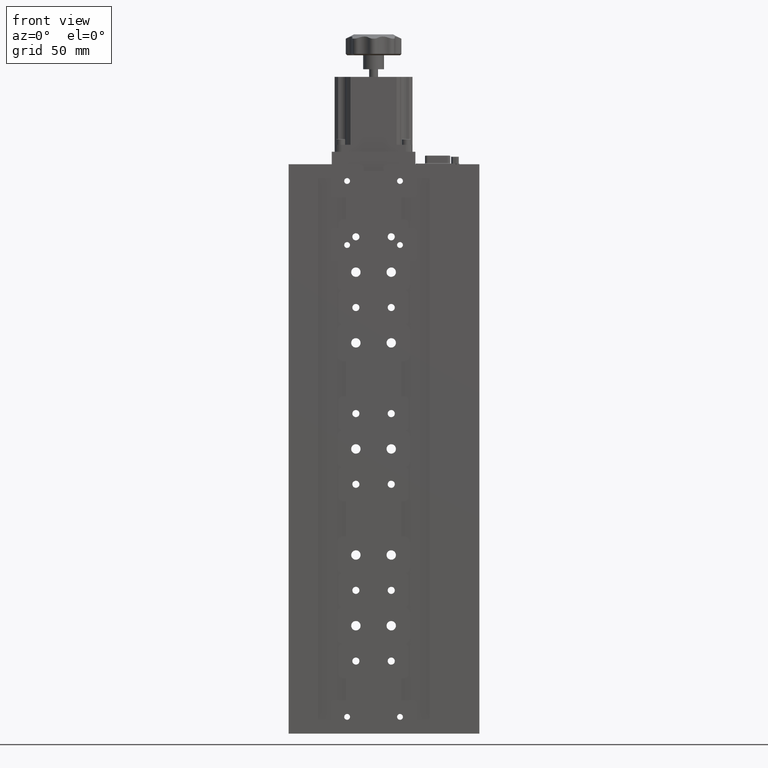
[diagram: clean part render]
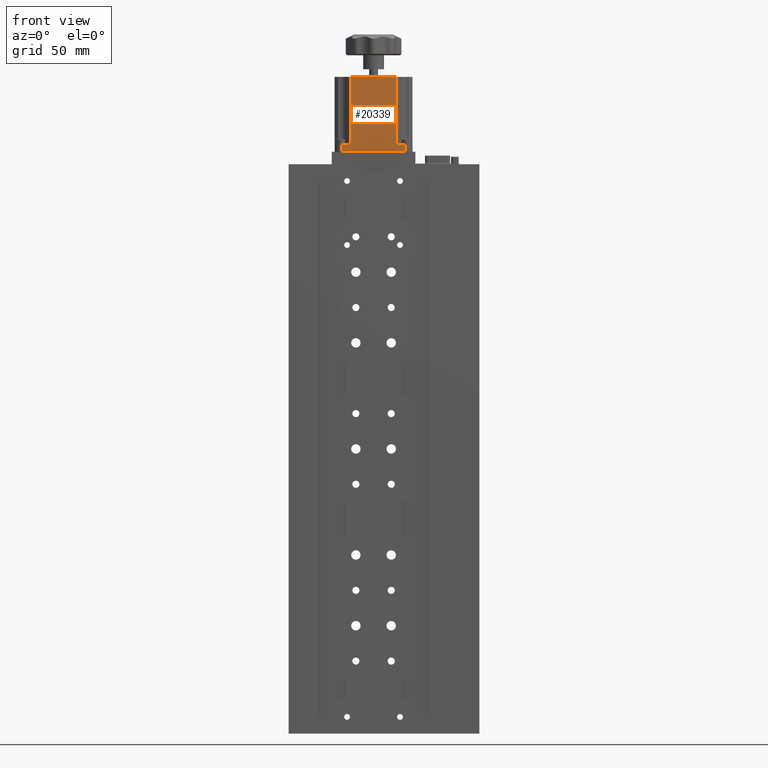
[diagram: same view with one face highlighted and labeled with its STEP entity id]
A machine part, front view. The second image highlights one B-rep face of the part: STEP entity #20339.
In plain terms, the highlighted planar face has unit normal (0, 1, 0).
Its self-contained STEP definition (entity closure, byte-faithful):
#194 = VERTEX_POINT ( 'NONE', #41852 ) ;
#454 = CARTESIAN_POINT ( 'NONE',  ( -33.28011670107466800, -7.104423987207602500, 150.7392992934879300 ) ) ;
#2361 = AXIS2_PLACEMENT_3D ( 'NONE', #10213, #33996, #13643 ) ;
#3140 = DIRECTION ( 'NONE',  ( -1.000000000000000000, 1.288651725011342800E-017, 0.0000000000000000000 ) ) ;
#3542 = CARTESIAN_POINT ( 'NONE',  ( 17.71988329892533200, -7.104423987207602500, 155.7392992934879300 ) ) ;
#3611 = VERTEX_POINT ( 'NONE', #12230 ) ;
#3935 = ORIENTED_EDGE ( 'NONE', *, *, #34190, .T. ) ;
#4671 = LINE ( 'NONE', #29257, #29659 ) ;
#5427 = CARTESIAN_POINT ( 'NONE',  ( -33.28011670107466800, -7.104423987207602500, 155.7392992934879300 ) ) ;
#5600 = ORIENTED_EDGE ( 'NONE', *, *, #9607, .T. ) ;
#6209 = VECTOR ( 'NONE', #33593, 1000.000000000000000 ) ;
#6934 = DIRECTION ( 'NONE',  ( -1.000000000000000000, 1.288651725011345200E-017, 0.0000000000000000000 ) ) ;
#7453 = DIRECTION ( 'NONE',  ( 0.0000000000000000000, -0.0000000000000000000, -1.000000000000000000 ) ) ;
#7734 = VERTEX_POINT ( 'NONE', #5427 ) ;
#8101 = CARTESIAN_POINT ( 'NONE',  ( 12.71988329892533400, -7.104423987207602500, 150.7392992934879300 ) ) ;
#9297 = LINE ( 'NONE', #41987, #18310 ) ;
#9548 = CARTESIAN_POINT ( 'NONE',  ( -26.85011670107465100, -7.104423987207591800, 155.7392992934879300 ) ) ;
#9607 = EDGE_CURVE ( 'NONE', #16421, #194, #25834, .T. ) ;
#9844 = VERTEX_POINT ( 'NONE', #8101 ) ;
#10024 = EDGE_CURVE ( 'NONE', #3611, #33325, #23606, .T. ) ;
#10213 = CARTESIAN_POINT ( 'NONE',  ( 17.71988329892533200, -7.104423987207602500, 150.7392992934879300 ) ) ;
#11770 = VECTOR ( 'NONE', #3140, 1000.000000000000000 ) ;
#12230 = CARTESIAN_POINT ( 'NONE',  ( -26.85011670107463600, -7.104423987207598900, 204.5392992934879400 ) ) ;
#13133 = EDGE_LOOP ( 'NONE', ( #5600, #16105, #17919, #41411, #20709, #14975, #18146, #3935 ) ) ;
#13643 = DIRECTION ( 'NONE',  ( 1.000000000000000000, -1.288651725011345200E-017, -0.0000000000000000000 ) ) ;
#14559 = VECTOR ( 'NONE', #23268, 1000.000000000000000 ) ;
#14975 = ORIENTED_EDGE ( 'NONE', *, *, #19887, .T. ) ;
#15751 = DIRECTION ( 'NONE',  ( -0.0000000000000000000, 0.0000000000000000000, 1.000000000000000000 ) ) ;
#15792 = VECTOR ( 'NONE', #7453, 1000.000000000000000 ) ;
#16105 = ORIENTED_EDGE ( 'NONE', *, *, #33018, .T. ) ;
#16421 = VERTEX_POINT ( 'NONE', #34056 ) ;
#17919 = ORIENTED_EDGE ( 'NONE', *, *, #42416, .T. ) ;
#18146 = ORIENTED_EDGE ( 'NONE', *, *, #33353, .F. ) ;
#18218 = DIRECTION ( 'NONE',  ( -0.0000000000000000000, 0.0000000000000000000, 1.000000000000000000 ) ) ;
#18310 = VECTOR ( 'NONE', #18218, 1000.000000000000000 ) ;
#19887 = EDGE_CURVE ( 'NONE', #7734, #21950, #25915, .T. ) ;
#20339 = ADVANCED_FACE ( 'NONE', ( #22615 ), #37225, .F. ) ;
#20709 = ORIENTED_EDGE ( 'NONE', *, *, #26121, .T. ) ;
#21950 = VERTEX_POINT ( 'NONE', #454 ) ;
#22615 = FACE_OUTER_BOUND ( 'NONE', #13133, .T. ) ;
#23233 = LINE ( 'NONE', #23374, #6209 ) ;
#23268 = DIRECTION ( 'NONE',  ( 0.0000000000000000000, 0.0000000000000000000, -1.000000000000000000 ) ) ;
#23374 = CARTESIAN_POINT ( 'NONE',  ( 17.71988329892533200, -7.104423987207602500, 150.7392992934879300 ) ) ;
#23606 = LINE ( 'NONE', #36734, #14559 ) ;
#25834 = LINE ( 'NONE', #3542, #42867 ) ;
#25915 = LINE ( 'NONE', #37880, #15792 ) ;
#26121 = EDGE_CURVE ( 'NONE', #33325, #7734, #34134, .T. ) ;
#29257 = CARTESIAN_POINT ( 'NONE',  ( 6.289883298925332200, -7.104423987207595400, 204.5392992934879400 ) ) ;
#29659 = VECTOR ( 'NONE', #15751, 1000.000000000000000 ) ;
#30909 = LINE ( 'NONE', #33576, #11770 ) ;
#33018 = EDGE_CURVE ( 'NONE', #194, #40311, #4671, .T. ) ;
#33325 = VERTEX_POINT ( 'NONE', #9548 ) ;
#33353 = EDGE_CURVE ( 'NONE', #9844, #21950, #23233, .T. ) ;
#33576 = CARTESIAN_POINT ( 'NONE',  ( 17.71988329892533200, -7.104423987207602500, 204.5392992934879400 ) ) ;
#33593 = DIRECTION ( 'NONE',  ( -1.000000000000000000, 1.288651725011342800E-017, 0.0000000000000000000 ) ) ;
#33996 = DIRECTION ( 'NONE',  ( 1.288651725011345200E-017, 1.000000000000000000, 0.0000000000000000000 ) ) ;
#34056 = CARTESIAN_POINT ( 'NONE',  ( 12.71988329892533400, -7.104423987207602500, 155.7392992934879300 ) ) ;
#34134 = LINE ( 'NONE', #39837, #42109 ) ;
#34190 = EDGE_CURVE ( 'NONE', #9844, #16421, #9297, .T. ) ;
#36734 = CARTESIAN_POINT ( 'NONE',  ( -26.85011670107465100, -7.104423987207591800, 150.7392992934879300 ) ) ;
#37225 = PLANE ( 'NONE',  #2361 ) ;
#37880 = CARTESIAN_POINT ( 'NONE',  ( -33.28011670107466800, -7.104423987207602500, 150.7392992934879300 ) ) ;
#37958 = CARTESIAN_POINT ( 'NONE',  ( 6.289883298925339300, -7.104423987207595400, 204.5392992934879400 ) ) ;
#39837 = CARTESIAN_POINT ( 'NONE',  ( 17.71988329892533200, -7.104423987207602500, 155.7392992934879300 ) ) ;
#40311 = VERTEX_POINT ( 'NONE', #37958 ) ;
#41411 = ORIENTED_EDGE ( 'NONE', *, *, #10024, .T. ) ;
#41852 = CARTESIAN_POINT ( 'NONE',  ( 6.289883298925332200, -7.104423987207595400, 155.7392992934879300 ) ) ;
#41987 = CARTESIAN_POINT ( 'NONE',  ( 12.71988329892533400, -7.104423987207602500, 150.7392992934879300 ) ) ;
#42109 = VECTOR ( 'NONE', #43270, 1000.000000000000000 ) ;
#42416 = EDGE_CURVE ( 'NONE', #40311, #3611, #30909, .T. ) ;
#42867 = VECTOR ( 'NONE', #6934, 1000.000000000000000 ) ;
#43270 = DIRECTION ( 'NONE',  ( -1.000000000000000000, 1.288651725011345200E-017, 0.0000000000000000000 ) ) ;